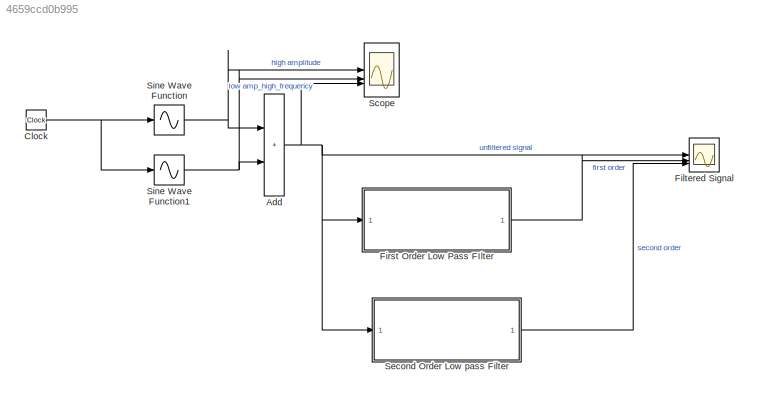
MODEL slx_4659ccd0b995
KIND model
CONFIG AbsTol = auto
CONFIG EnableMultiTasking = off
CONFIG FixedStep = 0.001
CONFIG MaxStep = auto
CONFIG MinStep = auto
CONFIG RelTol = 1e-3
CONFIG SampleTimeConstraint = Unconstrained
CONFIG SolverName = FixedStepAuto
CONFIG StartTime = 0.0
CONFIG StopTime = 50
BLOCK [Sum] Add
  IconShape = rectangular
BLOCK [Clock] Clock
BLOCK [Scope] Filtered Signal
  Floating = off
  NumInputPorts = 3
  ScopeSpecificationString = Simulink.scopes.TimeScopeBlockCfg('CurrentConfiguration', extmgr.ConfigurationSet(extmgr.Configuration('Core','General UI',true,'FigureColor',[0.501960784313725 0.501960784313725 0.501960784313725]),extmgr.Configuration('Core','Source UI',true),extmgr.Configuration('Sources','WiredSimulink',true),extmgr.Configuration('Visuals','Time Domain',true,'SerializedDisplays',{struct('MinYLimReal','-89.7614...<+1983ch>
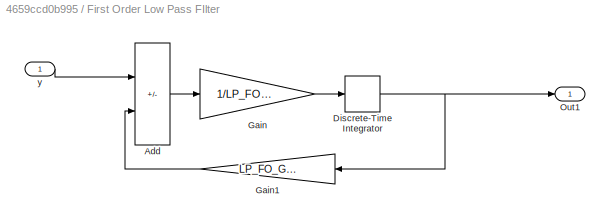
BLOCK [SubSystem] First Order Low Pass FIlter
BLOCK [Sum] First Order Low Pass FIlter/Add
  IconShape = rectangular
  Inputs = +-
BLOCK [DiscreteIntegrator] First Order Low Pass FIlter/Discrete-Time Integrator
  ICPrevOutput = DiscIntNeverNeededParam
  ICPrevScaledInput = DiscIntNeverNeededParam
  InitialConditionSetting = Auto
  SampleTime = -1
BLOCK [Gain] First Order Low Pass FIlter/Gain
  Gain = 1/LP_FO_Gain_a
BLOCK [Gain] First Order Low Pass FIlter/Gain1
  Gain = LP_FO_Gain_b
BLOCK [Outport] First Order Low Pass FIlter/Out1
BLOCK [Inport] First Order Low Pass FIlter/y
BLOCK [Scope] Scope
  Floating = off
  NumInputPorts = 3
  ScopeSpecificationString = Simulink.scopes.TimeScopeBlockCfg('CurrentConfiguration', extmgr.ConfigurationSet(extmgr.Configuration('Core','General UI',true),extmgr.Configuration('Core','Source UI',true),extmgr.Configuration('Sources','WiredSimulink',true,'DataLoggingVariableName','ScopeData1'),extmgr.Configuration('Visuals','Time Domain',true,'SerializedDisplays',{struct('MinYLimReal','-62.5','MaxYLimReal','62.5','YLabelReal...<+2767ch>
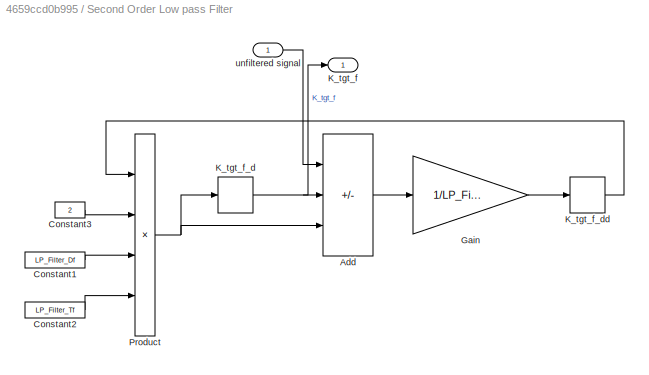
BLOCK [SubSystem] Second Order Low pass Filter
BLOCK [Sum] Second Order Low pass Filter/Add
  IconShape = rectangular
  Inputs = +--
BLOCK [Constant] Second Order Low pass Filter/Constant1
  Value = LP_Filter_Df
BLOCK [Constant] Second Order Low pass Filter/Constant2
  Value = LP_Filter_Tf
BLOCK [Constant] Second Order Low pass Filter/Constant3
  Value = 2
BLOCK [Gain] Second Order Low pass Filter/Gain
  Gain = 1/LP_Filter_Tf
BLOCK [Outport] Second Order Low pass Filter/K_tgt_f
BLOCK [DiscreteIntegrator] Second Order Low pass Filter/K_tgt_f_d
  ICPrevOutput = DiscIntNeverNeededParam
  ICPrevScaledInput = DiscIntNeverNeededParam
  InitialConditionSetting = Auto
  SampleTime = -1
BLOCK [DiscreteIntegrator] Second Order Low pass Filter/K_tgt_f_dd
  ICPrevOutput = DiscIntNeverNeededParam
  ICPrevScaledInput = DiscIntNeverNeededParam
  InitialConditionSetting = Auto
  SampleTime = -1
BLOCK [Product] Second Order Low pass Filter/Product
  Inputs = 4
BLOCK [Inport] Second Order Low pass Filter/unfiltered signal
BLOCK [Sin] Sine Wave Function
  Amplitude = 50
  SampleTime = 0
  TimeSource = Use external signal
BLOCK [Sin] Sine Wave Function1
  Amplitude = 5
  Frequency = 10
  SampleTime = 0
  TimeSource = Use external signal
NET Add:1 -> Filtered Signal:1, First Order Low Pass FIlter:1, Scope:3, Second Order Low pass Filter:1
NET Clock:1 -> Sine Wave Function1:1, Sine Wave Function:1
LINE First Order Low Pass FIlter/Add:1 -> First Order Low Pass FIlter/Gain:1
NET First Order Low Pass FIlter/Discrete-Time Integrator:1 -> First Order Low Pass FIlter/Gain1:1, First Order Low Pass FIlter/Out1:1
LINE First Order Low Pass FIlter/Gain1:1 -> First Order Low Pass FIlter/Add:2
LINE First Order Low Pass FIlter/Gain:1 -> First Order Low Pass FIlter/Discrete-Time Integrator:1
LINE First Order Low Pass FIlter/y:1 -> First Order Low Pass FIlter/Add:1
LINE First Order Low Pass FIlter:1 -> Filtered Signal:2
LINE Second Order Low pass Filter/Add:1 -> Second Order Low pass Filter/Gain:1
LINE Second Order Low pass Filter/Constant1:1 -> Second Order Low pass Filter/Product:3
LINE Second Order Low pass Filter/Constant2:1 -> Second Order Low pass Filter/Product:4
LINE Second Order Low pass Filter/Constant3:1 -> Second Order Low pass Filter/Product:2
LINE Second Order Low pass Filter/Gain:1 -> Second Order Low pass Filter/K_tgt_f_dd:1
NET Second Order Low pass Filter/K_tgt_f_d:1 -> Second Order Low pass Filter/Add:2, Second Order Low pass Filter/K_tgt_f:1
LINE Second Order Low pass Filter/K_tgt_f_dd:1 -> Second Order Low pass Filter/Product:1
NET Second Order Low pass Filter/Product:1 -> Second Order Low pass Filter/Add:3, Second Order Low pass Filter/K_tgt_f_d:1
LINE Second Order Low pass Filter/unfiltered signal:1 -> Second Order Low pass Filter/Add:1
LINE Second Order Low pass Filter:1 -> Filtered Signal:3
NET Sine Wave Function1:1 -> Add:2, Scope:2
NET Sine Wave Function:1 -> Add:1, Scope:1
note: NET lines group one-source signal fan-out (src -> all destinations, sorted); 1:1 wires keep LINE
